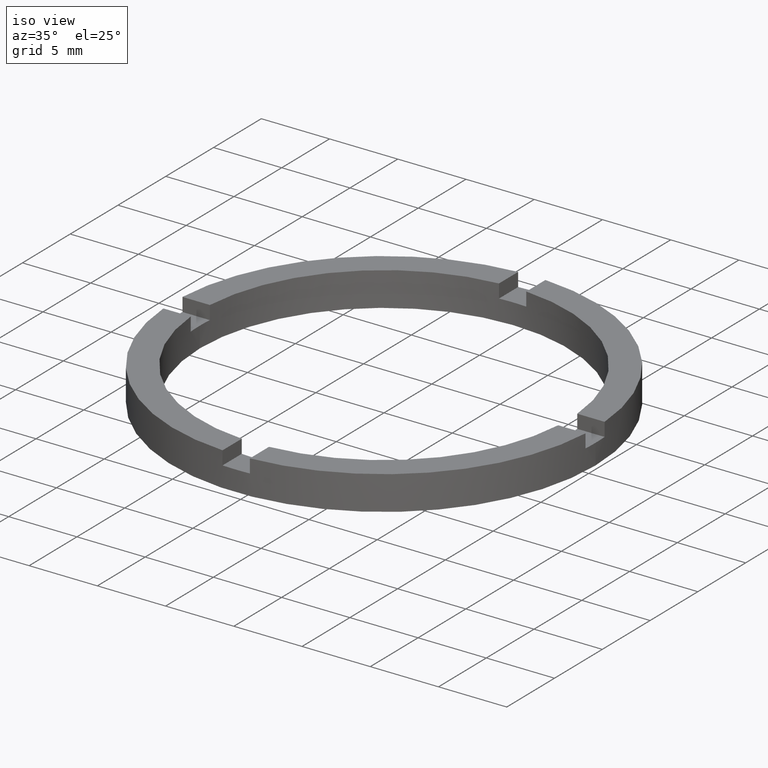
[diagram: clean part render]
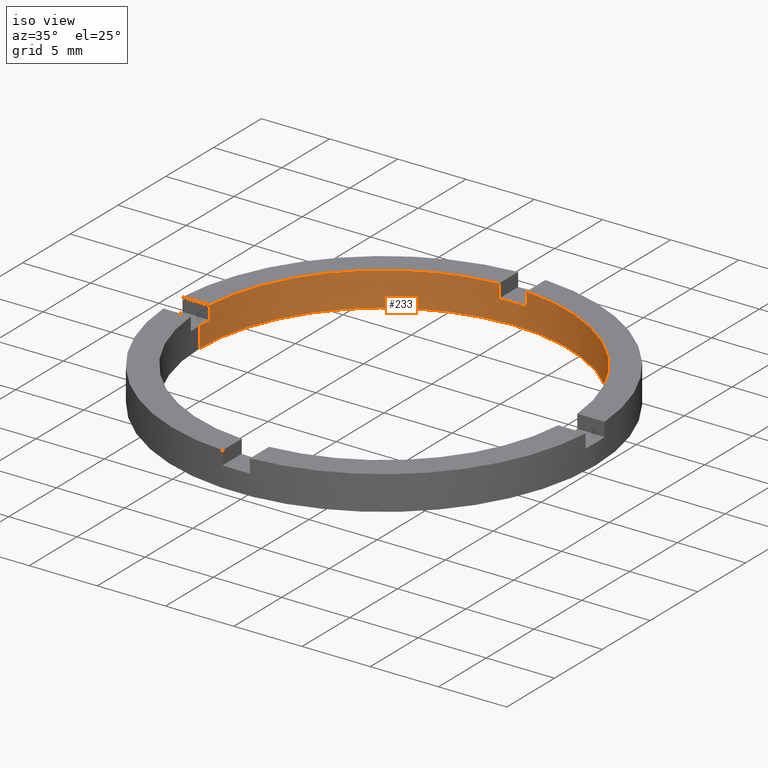
[diagram: same view with one face highlighted and labeled with its STEP entity id]
A machine part, iso view. The second image highlights one B-rep face of the part: STEP entity #233.
In plain terms, the highlighted cylindrical surface (partial cylindrical patch) has radius 13.5 mm, axis along (-0, -0, -1).
Its self-contained STEP definition (entity closure, byte-faithful):
#1 = CARTESIAN_POINT ( 'NONE',  ( 13.46291201783627045, 0.9999999999998409050, 2.500000000000000000 ) ) ;
#10 = DIRECTION ( 'NONE',  ( 0.000000000000000000, 0.000000000000000000, 1.000000000000000000 ) ) ;
#22 = CARTESIAN_POINT ( 'NONE',  ( 0.000000000000000000, 0.000000000000000000, 2.500000000000000000 ) ) ;
#26 = VERTEX_POINT ( 'NONE', #587 ) ;
#44 = CARTESIAN_POINT ( 'NONE',  ( -1.000000000000024869, 13.46291201783625802, 2.500000000000000000 ) ) ;
#48 = ORIENTED_EDGE ( 'NONE', *, *, #70, .F. ) ;
#50 = ORIENTED_EDGE ( 'NONE', *, *, #91, .F. ) ;
#52 = VERTEX_POINT ( 'NONE', #349 ) ;
#60 = CARTESIAN_POINT ( 'NONE',  ( 0.000000000000000000, 0.000000000000000000, 2.500000000000000000 ) ) ;
#68 = ORIENTED_EDGE ( 'NONE', *, *, #347, .T. ) ;
#70 = EDGE_CURVE ( 'NONE', #436, #298, #364, .T. ) ;
#76 = AXIS2_PLACEMENT_3D ( 'NONE', #472, #782, #645 ) ;
#82 = AXIS2_PLACEMENT_3D ( 'NONE', #342, #10, #330 ) ;
#91 = EDGE_CURVE ( 'NONE', #230, #436, #648, .T. ) ;
#94 = VECTOR ( 'NONE', #357, 1000.000000000000000 ) ;
#105 = VECTOR ( 'NONE', #338, 1000.000000000000000 ) ;
#111 = CARTESIAN_POINT ( 'NONE',  ( 13.46291201783627045, 0.9999999999998409050, 2.500000000000000000 ) ) ;
#113 = AXIS2_PLACEMENT_3D ( 'NONE', #136, #755, #147 ) ;
#121 = EDGE_CURVE ( 'NONE', #218, #186, #616, .T. ) ;
#134 = CARTESIAN_POINT ( 'NONE',  ( 0.9999999999999751310, 13.46291201783626335, 2.500000000000000000 ) ) ;
#136 = CARTESIAN_POINT ( 'NONE',  ( 0.000000000000000000, 0.000000000000000000, 1.500000000000000000 ) ) ;
#140 = VECTOR ( 'NONE', #419, 1000.000000000000000 ) ;
#143 = LINE ( 'NONE', #521, #662 ) ;
#147 = DIRECTION ( 'NONE',  ( 1.000000000000000000, 0.000000000000000000, 0.000000000000000000 ) ) ;
#149 = CIRCLE ( 'NONE', #774, 13.50000000000000000 ) ;
#151 = AXIS2_PLACEMENT_3D ( 'NONE', #22, #264, #614 ) ;
#157 = DIRECTION ( 'NONE',  ( 1.000000000000000000, 0.000000000000000000, 0.000000000000000000 ) ) ;
#168 = LINE ( 'NONE', #1, #140 ) ;
#179 = EDGE_LOOP ( 'NONE', ( #50, #730, #476, #565, #731, #463, #434, #309, #316, #68, #573, #48 ) ) ;
#186 = VERTEX_POINT ( 'NONE', #206 ) ;
#194 = CARTESIAN_POINT ( 'NONE',  ( -13.46291201783626157, 0.9999999999999770184, 1.500000000000000000 ) ) ;
#206 = CARTESIAN_POINT ( 'NONE',  ( -1.000000000000024869, 13.46291201783625802, 1.500000000000000000 ) ) ;
#218 = VERTEX_POINT ( 'NONE', #680 ) ;
#230 = VERTEX_POINT ( 'NONE', #699 ) ;
#233 = ADVANCED_FACE ( 'NONE', ( #639 ), #371, .F. ) ;
#252 = DIRECTION ( 'NONE',  ( 0.000000000000000000, 0.000000000000000000, 1.000000000000000000 ) ) ;
#264 = DIRECTION ( 'NONE',  ( -0.000000000000000000, -0.000000000000000000, -1.000000000000000000 ) ) ;
#276 = EDGE_CURVE ( 'NONE', #230, #26, #376, .T. ) ;
#297 = DIRECTION ( 'NONE',  ( 0.000000000000000000, 0.000000000000000000, 1.000000000000000000 ) ) ;
#298 = VERTEX_POINT ( 'NONE', #537 ) ;
#303 = AXIS2_PLACEMENT_3D ( 'NONE', #717, #252, #483 ) ;
#309 = ORIENTED_EDGE ( 'NONE', *, *, #539, .T. ) ;
#314 = CARTESIAN_POINT ( 'NONE',  ( -1.000000000000024869, 13.46291201783625802, 2.500000000000000000 ) ) ;
#316 = ORIENTED_EDGE ( 'NONE', *, *, #551, .F. ) ;
#323 = EDGE_CURVE ( 'NONE', #685, #186, #622, .T. ) ;
#330 = DIRECTION ( 'NONE',  ( 1.000000000000000000, 0.000000000000000000, 0.000000000000000000 ) ) ;
#338 = DIRECTION ( 'NONE',  ( -0.000000000000000000, -0.000000000000000000, -1.000000000000000000 ) ) ;
#342 = CARTESIAN_POINT ( 'NONE',  ( 0.000000000000000000, 0.000000000000000000, 1.500000000000000000 ) ) ;
#347 = EDGE_CURVE ( 'NONE', #359, #736, #396, .T. ) ;
#349 = CARTESIAN_POINT ( 'NONE',  ( 0.9999999999999751310, 13.46291201783626335, 2.500000000000000000 ) ) ;
#356 = DIRECTION ( 'NONE',  ( 0.000000000000000000, 0.000000000000000000, 1.000000000000000000 ) ) ;
#357 = DIRECTION ( 'NONE',  ( -0.000000000000000000, -0.000000000000000000, -1.000000000000000000 ) ) ;
#359 = VERTEX_POINT ( 'NONE', #194 ) ;
#364 = CIRCLE ( 'NONE', #406, 13.50000000000000000 ) ;
#371 = CYLINDRICAL_SURFACE ( 'NONE', #151, 13.50000000000000000 ) ;
#376 = CIRCLE ( 'NONE', #82, 13.50000000000000000 ) ;
#379 = CARTESIAN_POINT ( 'NONE',  ( 13.50000000000000000, 1.653273178848926867E-15, 2.500000000000000000 ) ) ;
#393 = EDGE_CURVE ( 'NONE', #218, #52, #398, .T. ) ;
#396 = CIRCLE ( 'NONE', #303, 13.50000000000000000 ) ;
#398 = LINE ( 'NONE', #134, #399 ) ;
#399 = VECTOR ( 'NONE', #446, 1000.000000000000000 ) ;
#406 = AXIS2_PLACEMENT_3D ( 'NONE', #769, #532, #157 ) ;
#413 = CARTESIAN_POINT ( 'NONE',  ( -13.50000000000000000, 0.000000000000000000, 2.500000000000000000 ) ) ;
#419 = DIRECTION ( 'NONE',  ( -0.000000000000000000, -0.000000000000000000, -1.000000000000000000 ) ) ;
#420 = LINE ( 'NONE', #413, #423 ) ;
#423 = VECTOR ( 'NONE', #652, 1000.000000000000000 ) ;
#430 = EDGE_CURVE ( 'NONE', #437, #52, #451, .T. ) ;
#434 = ORIENTED_EDGE ( 'NONE', *, *, #323, .F. ) ;
#436 = VERTEX_POINT ( 'NONE', #480 ) ;
#437 = VERTEX_POINT ( 'NONE', #111 ) ;
#446 = DIRECTION ( 'NONE',  ( 0.000000000000000000, 0.000000000000000000, 1.000000000000000000 ) ) ;
#451 = CIRCLE ( 'NONE', #76, 13.50000000000000000 ) ;
#463 = ORIENTED_EDGE ( 'NONE', *, *, #121, .T. ) ;
#471 = EDGE_CURVE ( 'NONE', #437, #26, #168, .T. ) ;
#472 = CARTESIAN_POINT ( 'NONE',  ( 0.000000000000000000, 0.000000000000000000, 2.500000000000000000 ) ) ;
#476 = ORIENTED_EDGE ( 'NONE', *, *, #471, .F. ) ;
#480 = CARTESIAN_POINT ( 'NONE',  ( 13.50000000000000000, 1.653273178848926867E-15, 0.000000000000000000 ) ) ;
#483 = DIRECTION ( 'NONE',  ( 1.000000000000000000, 0.000000000000000000, 0.000000000000000000 ) ) ;
#521 = CARTESIAN_POINT ( 'NONE',  ( -13.46291201783626157, 0.9999999999999770184, 2.500000000000000000 ) ) ;
#532 = DIRECTION ( 'NONE',  ( 0.000000000000000000, 0.000000000000000000, 1.000000000000000000 ) ) ;
#537 = CARTESIAN_POINT ( 'NONE',  ( -13.50000000000000000, 0.000000000000000000, 0.000000000000000000 ) ) ;
#539 = EDGE_CURVE ( 'NONE', #685, #579, #149, .T. ) ;
#551 = EDGE_CURVE ( 'NONE', #359, #579, #143, .T. ) ;
#565 = ORIENTED_EDGE ( 'NONE', *, *, #430, .T. ) ;
#573 = ORIENTED_EDGE ( 'NONE', *, *, #771, .T. ) ;
#579 = VERTEX_POINT ( 'NONE', #626 ) ;
#587 = CARTESIAN_POINT ( 'NONE',  ( 13.46291201783627045, 0.9999999999998409050, 1.500000000000000000 ) ) ;
#614 = DIRECTION ( 'NONE',  ( -1.000000000000000000, 0.000000000000000000, 0.000000000000000000 ) ) ;
#616 = CIRCLE ( 'NONE', #113, 13.50000000000000000 ) ;
#622 = LINE ( 'NONE', #314, #94 ) ;
#626 = CARTESIAN_POINT ( 'NONE',  ( -13.46291201783626157, 0.9999999999999770184, 2.500000000000000000 ) ) ;
#639 = FACE_OUTER_BOUND ( 'NONE', #179, .T. ) ;
#645 = DIRECTION ( 'NONE',  ( 1.000000000000000000, 0.000000000000000000, 0.000000000000000000 ) ) ;
#648 = LINE ( 'NONE', #379, #105 ) ;
#652 = DIRECTION ( 'NONE',  ( -0.000000000000000000, -0.000000000000000000, -1.000000000000000000 ) ) ;
#662 = VECTOR ( 'NONE', #297, 1000.000000000000000 ) ;
#680 = CARTESIAN_POINT ( 'NONE',  ( 0.9999999999999751310, 13.46291201783626335, 1.500000000000000000 ) ) ;
#685 = VERTEX_POINT ( 'NONE', #44 ) ;
#699 = CARTESIAN_POINT ( 'NONE',  ( 13.50000000000000000, 1.653273178848926867E-15, 1.500000000000000000 ) ) ;
#706 = CARTESIAN_POINT ( 'NONE',  ( -13.50000000000000000, 0.000000000000000000, 1.500000000000000000 ) ) ;
#717 = CARTESIAN_POINT ( 'NONE',  ( 0.000000000000000000, 0.000000000000000000, 1.500000000000000000 ) ) ;
#730 = ORIENTED_EDGE ( 'NONE', *, *, #276, .T. ) ;
#731 = ORIENTED_EDGE ( 'NONE', *, *, #393, .F. ) ;
#736 = VERTEX_POINT ( 'NONE', #706 ) ;
#755 = DIRECTION ( 'NONE',  ( 0.000000000000000000, -0.000000000000000000, 1.000000000000000000 ) ) ;
#760 = DIRECTION ( 'NONE',  ( 1.000000000000000000, 0.000000000000000000, 0.000000000000000000 ) ) ;
#769 = CARTESIAN_POINT ( 'NONE',  ( 0.000000000000000000, 0.000000000000000000, 0.000000000000000000 ) ) ;
#771 = EDGE_CURVE ( 'NONE', #736, #298, #420, .T. ) ;
#774 = AXIS2_PLACEMENT_3D ( 'NONE', #60, #356, #760 ) ;
#782 = DIRECTION ( 'NONE',  ( 0.000000000000000000, 0.000000000000000000, 1.000000000000000000 ) ) ;